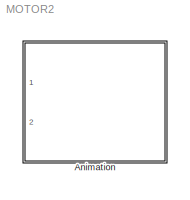
MODEL MOTOR2
KIND model
CONFIG AbsTol = auto
CONFIG FixedStep = auto
CONFIG MaxStep = auto
CONFIG MinStep = auto
CONFIG RelTol = 1e-3
CONFIG Solver = ode45
CONFIG SolverMode = Auto
CONFIG StartTime = 0.0
CONFIG StopTime = 10.0
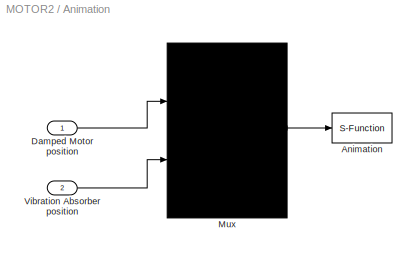
BLOCK [SubSystem] Animation
  Ports = [2]
  TreatAsAtomicUnit = off
BLOCK [S-Function] Animation/Animation
  FunctionName = Manim2
  Ports = [1]
BLOCK [Inport] Animation/Damped Motor position
BLOCK [Mux] Animation/Mux
  Inputs = 2
  Ports = [2, 1]
BLOCK [Inport] Animation/Vibration Absorber position
  Port = 2
LINE Animation/Damped Motor position:1 -> Animation/Mux:1
LINE Animation/Mux:1 -> Animation/Animation:1
LINE Animation/Vibration Absorber position:1 -> Animation/Mux:2
